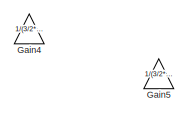
[diagram: root canvas - part 1/2, top left region]
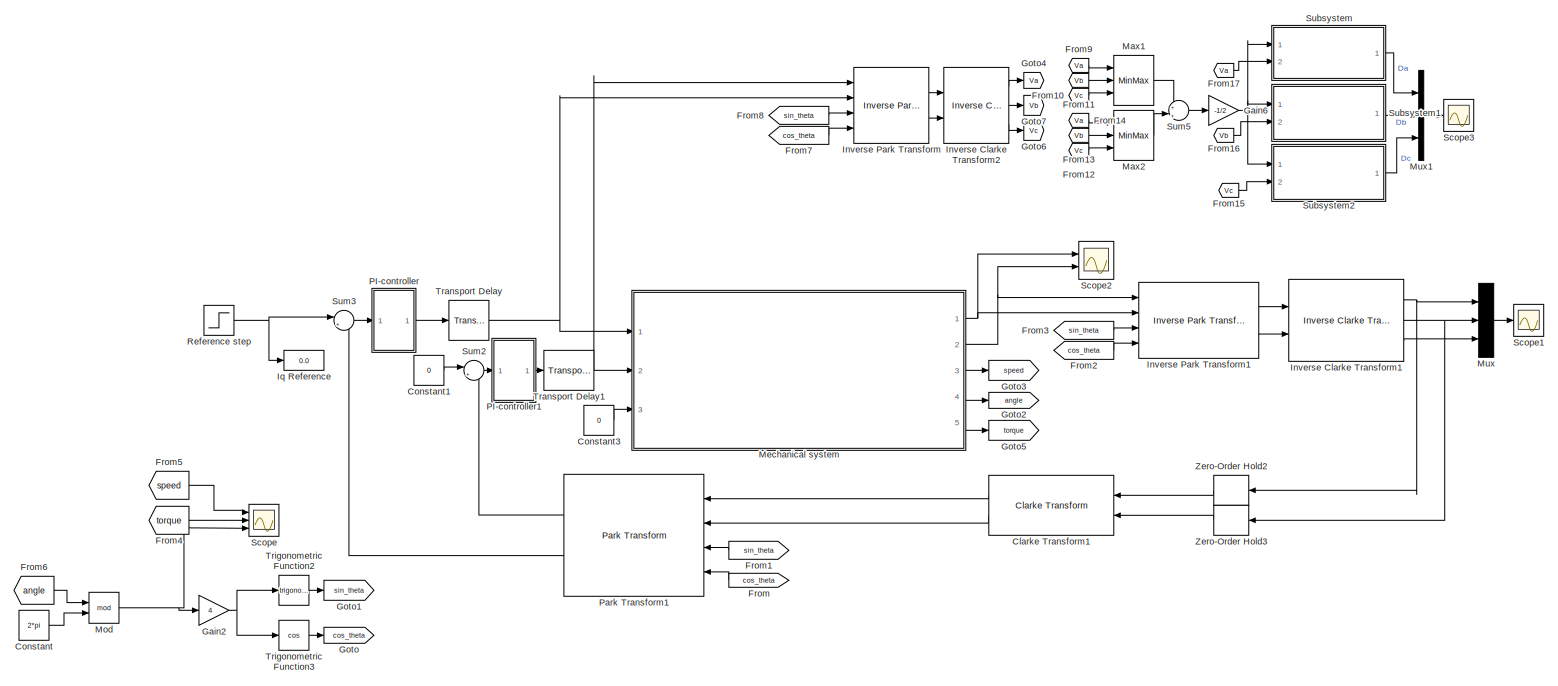
[diagram: root canvas - part 2/2, full width, middle band]
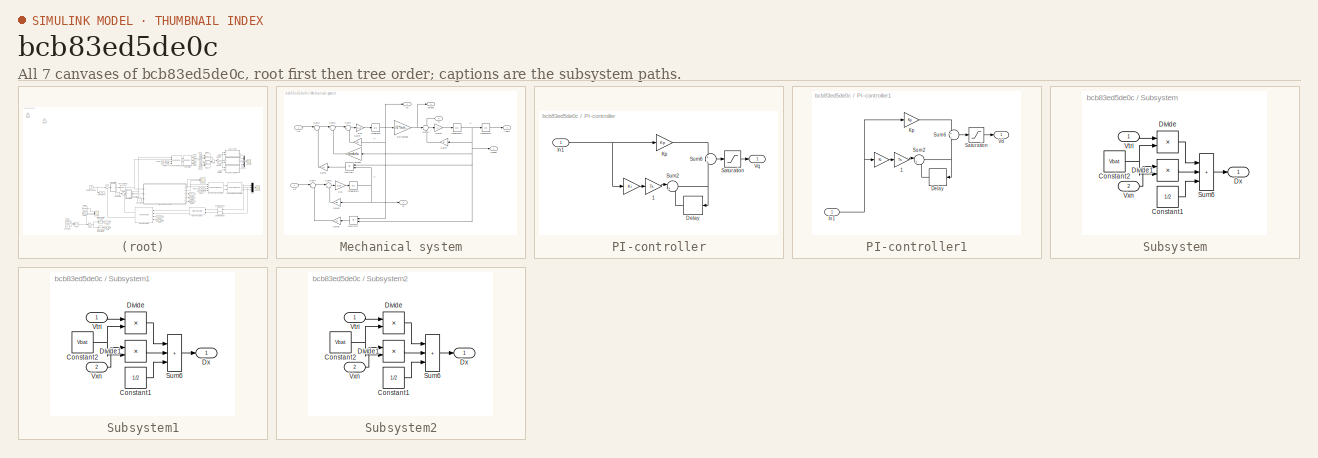
[diagram: thumbnail index - all 7 canvases of the model, root first then tree order]
MODEL slx_bcb83ed5de0c
KIND model
CONFIG AbsTol = auto
CONFIG EnableMultiTasking = off
CONFIG FixedStep = auto
CONFIG MaxStep = auto
CONFIG MinStep = auto
CONFIG RelTol = 1e-3
CONFIG SampleTimeConstraint = Unconstrained
CONFIG SolverName = VariableStepAuto
CONFIG StartTime = 0.0
CONFIG StopTime = 10
BLOCK [Reference] Clarke Transform1  REF=mcbcontrolslib/Clarke Transform
  NameLocation = top
  Ports = [2, 2]
  SourceBlock = mcbcontrolslib/Clarke Transform
  SourceProductBaseCode = MT
  SourceType = Clarke Transform
BLOCK [Constant] Constant
  Value = 2*pi
BLOCK [Constant] Constant1
  Value = 0
BLOCK [Constant] Constant3
  Value = 0
BLOCK [From] From
  GotoTag = cos_theta
  NameLocation = top
BLOCK [From] From1
  GotoTag = sin_theta
  NameLocation = top
BLOCK [From] From10
  GotoTag = Vc
BLOCK [From] From11
  GotoTag = Vb
BLOCK [From] From12
  GotoTag = Vc
BLOCK [From] From13
  GotoTag = Vb
BLOCK [From] From14
  GotoTag = Va
BLOCK [From] From15
  GotoTag = Vc
BLOCK [From] From16
  GotoTag = Vb
BLOCK [From] From17
  GotoTag = Va
BLOCK [From] From2
  GotoTag = cos_theta
BLOCK [From] From3
  GotoTag = sin_theta
BLOCK [From] From4
  GotoTag = torque
BLOCK [From] From5
  GotoTag = speed
BLOCK [From] From6
  GotoTag = angle
BLOCK [From] From7
  GotoTag = cos_theta
BLOCK [From] From8
  GotoTag = sin_theta
BLOCK [From] From9
  GotoTag = Va
BLOCK [Gain] Gain2
  Gain = 4
BLOCK [Gain] Gain4
  Gain = 1/(3/2*lambda)
  NameLocation = right
BLOCK [Gain] Gain5
  Gain = 1/(3/2*lambda)
  NameLocation = right
BLOCK [Gain] Gain6
  Gain = -1/2
BLOCK [Goto] Goto
  GotoTag = cos_theta
BLOCK [Goto] Goto1
  GotoTag = sin_theta
BLOCK [Goto] Goto2
  GotoTag = angle
BLOCK [Goto] Goto3
  GotoTag = speed
BLOCK [Goto] Goto4
  GotoTag = Va
BLOCK [Goto] Goto5
  GotoTag = torque
BLOCK [Goto] Goto6
  GotoTag = Vc
BLOCK [Goto] Goto7
  GotoTag = Vb
BLOCK [Reference] Inverse Clarke Transform1  REF=mcbcontrolslib/Inverse Clarke Transform
  Ports = [2, 3]
  SourceBlock = mcbcontrolslib/Inverse Clarke Transform
  SourceProductBaseCode = MT
  SourceType = Inverse Clarke Transform
BLOCK [Reference] Inverse Clarke Transform2  REF=mcbcontrolslib/Inverse Clarke Transform
  Ports = [2, 3]
  SourceBlock = mcbcontrolslib/Inverse Clarke Transform
  SourceProductBaseCode = MT
  SourceType = Inverse Clarke Transform
BLOCK [Reference] Inverse Park Transform  REF=mcbcontrolslib/Inverse Park Transform
  NameLocation = top
  Ports = [4, 2]
  SourceBlock = mcbcontrolslib/Inverse Park Transform
  SourceProductBaseCode = MT
  SourceType = Inverse Park Transform
BLOCK [Reference] Inverse Park Transform1  REF=mcbcontrolslib/Inverse Park Transform
  Ports = [4, 2]
  SourceBlock = mcbcontrolslib/Inverse Park Transform
  SourceProductBaseCode = MT
  SourceType = Inverse Park Transform
BLOCK [Display] Iq Reference
  Decimation = 3
  Ports = [1]
BLOCK [MinMax] Max1
  Function = max
  Inputs = 3
  Ports = [3, 1]
BLOCK [MinMax] Max2
  Inputs = 3
  Ports = [3, 1]
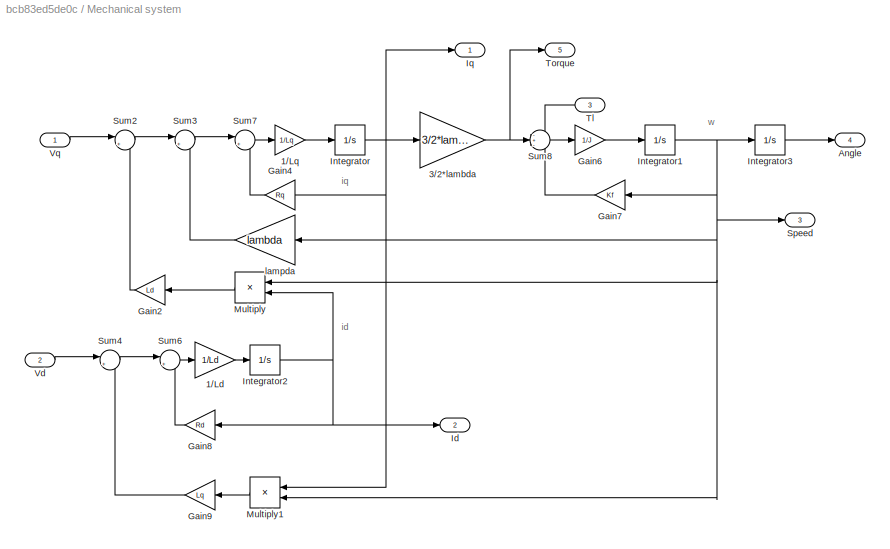
BLOCK [SubSystem] Mechanical system
  Ports = [3, 5]
  RequestExecContextInheritance = off
BLOCK [Gain] Mechanical system/1//Ld
  Gain = 1/Ld
BLOCK [Gain] Mechanical system/1//Lq
  Gain = 1/Lq
BLOCK [Gain] Mechanical system/3//2*lambda
  Gain = 3/2*lambda
BLOCK [Outport] Mechanical system/Angle
  Port = 4
BLOCK [Gain] Mechanical system/Gain2
  Gain = Ld
  NameLocation = top
BLOCK [Gain] Mechanical system/Gain4
  Gain = Rq
  NameLocation = top
BLOCK [Gain] Mechanical system/Gain6
  Gain = 1/J
BLOCK [Gain] Mechanical system/Gain7
  Gain = Kf
  NameLocation = top
BLOCK [Gain] Mechanical system/Gain8
  Gain = Rd
  NameLocation = top
BLOCK [Gain] Mechanical system/Gain9
  Gain = Lq
  NameLocation = top
BLOCK [Outport] Mechanical system/Id
  Port = 2
BLOCK [Integrator] Mechanical system/Integrator
  Ports = [1, 1]
BLOCK [Integrator] Mechanical system/Integrator1
  Ports = [1, 1]
BLOCK [Integrator] Mechanical system/Integrator2
  Ports = [1, 1]
BLOCK [Integrator] Mechanical system/Integrator3
  Ports = [1, 1]
BLOCK [Outport] Mechanical system/Iq
BLOCK [Product] Mechanical system/Multiply
  NameLocation = top
  Ports = [2, 1]
BLOCK [Product] Mechanical system/Multiply1
  NameLocation = top
  Ports = [2, 1]
BLOCK [Outport] Mechanical system/Speed
  Port = 3
BLOCK [Sum] Mechanical system/Sum2
  Inputs = |+-
  Ports = [2, 1]
BLOCK [Sum] Mechanical system/Sum3
  Inputs = |+-
  Ports = [2, 1]
BLOCK [Sum] Mechanical system/Sum4
  Inputs = |++
  Ports = [2, 1]
BLOCK [Sum] Mechanical system/Sum6
  Inputs = |+-
  Ports = [2, 1]
BLOCK [Sum] Mechanical system/Sum7
  Inputs = |+-
  Ports = [2, 1]
BLOCK [Sum] Mechanical system/Sum8
  Inputs = -+-
  Ports = [3, 1]
BLOCK [Inport] Mechanical system/Tl
  NameLocation = top
  Port = 3
BLOCK [Outport] Mechanical system/Torque
  Port = 5
BLOCK [Inport] Mechanical system/Vd
  Port = 2
BLOCK [Inport] Mechanical system/Vq
BLOCK [Gain] Mechanical system/lampda
  Gain = lambda
  NameLocation = left
BLOCK [Math] Mod
  Operator = mod
  Ports = [2, 1]
BLOCK [Mux] Mux
  DisplayOption = bar
  Inputs = 3
  Ports = [3, 1]
BLOCK [Mux] Mux1
  DisplayOption = bar
  Inputs = 3
  Ports = [3, 1]
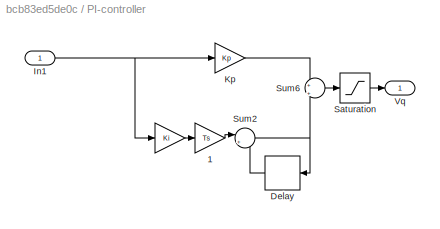
BLOCK [SubSystem] PI-controller
  Ports = [1, 1]
  RequestExecContextInheritance = off
BLOCK [Gain] PI-controller/ 
  Gain = Ki
BLOCK [Gain] PI-controller/ 1
  Gain = Ts
BLOCK [Delay] PI-controller/Delay
  DelayLength = 1
  InputPortMap = u0
  NameLocation = top
  Ports = [1, 1]
  SampleTime = Ts
BLOCK [Inport] PI-controller/In1
BLOCK [Gain] PI-controller/Kp
  Gain = Kp
BLOCK [Saturate] PI-controller/Saturation
  LowerLimit = -Vbat
  UpperLimit = Vbat
BLOCK [Sum] PI-controller/Sum2
  Inputs = |++
  Ports = [2, 1]
BLOCK [Sum] PI-controller/Sum6
  Inputs = +|+
  Ports = [2, 1]
BLOCK [Outport] PI-controller/Vq
BLOCK [SubSystem] PI-controller1
  Ports = [1, 1]
  RequestExecContextInheritance = off
BLOCK [Gain] PI-controller1/ 
  Gain = Ki
BLOCK [Gain] PI-controller1/ 1
  Gain = Ts
BLOCK [Delay] PI-controller1/Delay
  DelayLength = 1
  InputPortMap = u0
  NameLocation = top
  Ports = [1, 1]
  SampleTime = Ts
BLOCK [Inport] PI-controller1/In1
BLOCK [Gain] PI-controller1/Kp
  Gain = Kp
BLOCK [Saturate] PI-controller1/Saturation
  LowerLimit = -Vbat
  UpperLimit = Vbat
BLOCK [Sum] PI-controller1/Sum2
  Inputs = |++
  Ports = [2, 1]
BLOCK [Sum] PI-controller1/Sum6
  Inputs = +|+
  Ports = [2, 1]
BLOCK [Outport] PI-controller1/Vd
BLOCK [Reference] Park Transform1  REF=mcbcontrolslib/Park Transform
  NameLocation = top
  Ports = [4, 2]
  SourceBlock = mcbcontrolslib/Park Transform
  SourceProductBaseCode = MT
  SourceType = Park Transform
BLOCK [Step] Reference step
  After = 311
  SampleTime = 0
  Time = 0.1
BLOCK [Scope] Scope
  Floating = off
  NumInputPorts = 3
  Ports = [3]
  ScopeSpecificationString = Simulink.scopes.TimeScopeBlockCfg('CurrentConfiguration', extmgr.ConfigurationSet(extmgr.Configuration('Core','General UI',true),extmgr.Configuration('Core','Source UI',true),extmgr.Configuration('Sources','WiredSimulink',true,'DataLoggingVariableName','ScopeData1'),extmgr.Configuration('Visuals','Time Domain',true,'SerializedDisplays',{struct('MinYLimReal','-1124.27751','MaxYLimReal','10118.49757...<+2832ch>
BLOCK [Scope] Scope1
  Floating = off
  NumInputPorts = 1
  Ports = [1]
  ScopeSpecificationString = Simulink.scopes.TimeScopeBlockCfg('CurrentConfiguration', extmgr.ConfigurationSet(extmgr.Configuration('Core','General UI',true),extmgr.Configuration('Core','Source UI',true),extmgr.Configuration('Sources','WiredSimulink',true,'DataLoggingVariableName','ScopeData2'),extmgr.Configuration('Visuals','Time Domain',true,'SerializedDisplays',{struct('MinYLimReal','-390.37949','MaxYLimReal','390.38233','...<+1504ch>
BLOCK [Scope] Scope2
  Floating = off
  NumInputPorts = 2
  Ports = [2]
  ScopeSpecificationString = Simulink.scopes.TimeScopeBlockCfg('CurrentConfiguration', extmgr.ConfigurationSet(extmgr.Configuration('Core','General UI',true),extmgr.Configuration('Core','Source UI',true),extmgr.Configuration('Sources','WiredSimulink',true),extmgr.Configuration('Visuals','Time Domain',true,'SerializedDisplays',{struct('MinYLimReal','-39.06201','MaxYLimReal','351.55805','YLabelReal','','MinYLimMag','0.00000','M...<+1445ch>
BLOCK [Scope] Scope3
  Floating = off
  NumInputPorts = 1
  Ports = [1]
  ScopeSpecificationString = Simulink.scopes.TimeScopeBlockCfg('CurrentConfiguration', extmgr.ConfigurationSet(extmgr.Configuration('Core','General UI',true,'FigureColor',[1 1 1]),extmgr.Configuration('Core','Source UI',true),extmgr.Configuration('Sources','WiredSimulink',true,'DataLoggingVariableName','ScopeData2'),extmgr.Configuration('Visuals','Time Domain',true,'SerializedDisplays',{struct('MinYLimReal','0.45654','MaxYLim...<+1852ch>
BLOCK [SubSystem] Subsystem
  Ports = [2, 1]
  RequestExecContextInheritance = off
BLOCK [Constant] Subsystem/Constant1
  Value = 1/2
BLOCK [Constant] Subsystem/Constant2
  Value = Vbat
BLOCK [Product] Subsystem/Divide
  Inputs = */
  Ports = [2, 1]
BLOCK [Product] Subsystem/Divide1
  Inputs = */
  Ports = [2, 1]
BLOCK [Outport] Subsystem/Dx
BLOCK [Sum] Subsystem/Sum6
  IconShape = rectangular
  Inputs = +++
  Ports = [3, 1]
BLOCK [Inport] Subsystem/Vtri
BLOCK [Inport] Subsystem/Vxn
  Port = 2
BLOCK [SubSystem] Subsystem1
  Ports = [2, 1]
  RequestExecContextInheritance = off
BLOCK [Constant] Subsystem1/Constant1
  Value = 1/2
BLOCK [Constant] Subsystem1/Constant2
  Value = Vbat
BLOCK [Product] Subsystem1/Divide
  Inputs = */
  Ports = [2, 1]
BLOCK [Product] Subsystem1/Divide1
  Inputs = */
  Ports = [2, 1]
BLOCK [Outport] Subsystem1/Dx
BLOCK [Sum] Subsystem1/Sum6
  IconShape = rectangular
  Inputs = +++
  Ports = [3, 1]
BLOCK [Inport] Subsystem1/Vtri
BLOCK [Inport] Subsystem1/Vxn
  Port = 2
BLOCK [SubSystem] Subsystem2
  Ports = [2, 1]
  RequestExecContextInheritance = off
BLOCK [Constant] Subsystem2/Constant1
  Value = 1/2
BLOCK [Constant] Subsystem2/Constant2
  Value = Vbat
BLOCK [Product] Subsystem2/Divide
  Inputs = */
  Ports = [2, 1]
BLOCK [Product] Subsystem2/Divide1
  Inputs = */
  Ports = [2, 1]
BLOCK [Outport] Subsystem2/Dx
BLOCK [Sum] Subsystem2/Sum6
  IconShape = rectangular
  Inputs = +++
  Ports = [3, 1]
BLOCK [Inport] Subsystem2/Vtri
BLOCK [Inport] Subsystem2/Vxn
  Port = 2
BLOCK [Sum] Sum2
  Inputs = |+-
  Ports = [2, 1]
BLOCK [Sum] Sum3
  Inputs = |+-
  Ports = [2, 1]
BLOCK [Sum] Sum5
  Inputs = +|+
  Ports = [2, 1]
BLOCK [TransportDelay] Transport Delay
  DelayTime = Calc_delay
  Ports = [1, 1]
BLOCK [TransportDelay] Transport Delay1
  DelayTime = Calc_delay
  Ports = [1, 1]
BLOCK [Trigonometry] Trigonometric Function2
  Ports = [1, 1]
BLOCK [Trigonometry] Trigonometric Function3
  Operator = cos
  Ports = [1, 1]
BLOCK [ZeroOrderHold] Zero-Order Hold2
  NameLocation = top
  SampleTime = Ts
BLOCK [ZeroOrderHold] Zero-Order Hold3
  NameLocation = top
  SampleTime = Ts
ANNOTATION Mechanical system: id
ANNOTATION Mechanical system: iq
ANNOTATION Mechanical system: w
LINE Clarke Transform1:1 -> Park Transform1:1
LINE Clarke Transform1:2 -> Park Transform1:2
LINE Constant1:1 -> Sum2:1
LINE Constant3:1 -> Mechanical system:3
LINE Constant:1 -> Mod:2
LINE From10:1 -> Max1:3
LINE From11:1 -> Max1:2
LINE From12:1 -> Max2:3
LINE From13:1 -> Max2:2
LINE From14:1 -> Max2:1
LINE From15:1 -> Subsystem2:2
LINE From16:1 -> Subsystem1:2
LINE From17:1 -> Subsystem:2
LINE From1:1 -> Park Transform1:3
LINE From2:1 -> Inverse Park Transform1:4
LINE From3:1 -> Inverse Park Transform1:3
LINE From4:1 -> Scope:2
LINE From5:1 -> Scope:1
LINE From6:1 -> Mod:1
LINE From7:1 -> Inverse Park Transform:4
LINE From8:1 -> Inverse Park Transform:3
LINE From9:1 -> Max1:1
LINE From:1 -> Park Transform1:4
NET Gain2:1 -> Trigonometric Function2:1, Trigonometric Function3:1
NET Gain6:1 -> Subsystem1:1, Subsystem2:1, Subsystem:1
NET Inverse Clarke Transform1:1 -> Mux:1, Zero-Order Hold2:1
NET Inverse Clarke Transform1:2 -> Mux:2, Zero-Order Hold3:1
LINE Inverse Clarke Transform1:3 -> Mux:3
LINE Inverse Clarke Transform2:1 -> Goto4:1
LINE Inverse Clarke Transform2:2 -> Goto7:1
LINE Inverse Clarke Transform2:3 -> Goto6:1
LINE Inverse Park Transform1:1 -> Inverse Clarke Transform1:1
LINE Inverse Park Transform1:2 -> Inverse Clarke Transform1:2
LINE Inverse Park Transform:1 -> Inverse Clarke Transform2:1
LINE Inverse Park Transform:2 -> Inverse Clarke Transform2:2
LINE Max1:1 -> Sum5:1
LINE Max2:1 -> Sum5:2
LINE Mechanical system/1//Ld:1 -> Mechanical system/Integrator2:1
LINE Mechanical system/1//Lq:1 -> Mechanical system/Integrator:1
NET Mechanical system/3//2*lambda:1 -> Mechanical system/Sum8:2, Mechanical system/Torque:1
LINE Mechanical system/Gain2:1 -> Mechanical system/Sum2:2
LINE Mechanical system/Gain4:1 -> Mechanical system/Sum7:2
LINE Mechanical system/Gain6:1 -> Mechanical system/Integrator1:1
LINE Mechanical system/Gain7:1 -> Mechanical system/Sum8:3
LINE Mechanical system/Gain8:1 -> Mechanical system/Sum6:2
LINE Mechanical system/Gain9:1 -> Mechanical system/Sum4:2
NET Mechanical system/Integrator1:1 -> Mechanical system/Gain7:1, Mechanical system/Integrator3:1, Mechanical system/Multiply1:2, Mechanical system/Multiply:1, Mechanical system/Speed:1, Mechanical system/lampda:1
NET Mechanical system/Integrator2:1 -> Mechanical system/Gain8:1, Mechanical system/Id:1, Mechanical system/Multiply:2
LINE Mechanical system/Integrator3:1 -> Mechanical system/Angle:1
NET Mechanical system/Integrator:1 -> Mechanical system/3//2*lambda:1, Mechanical system/Gain4:1, Mechanical system/Iq:1, Mechanical system/Multiply1:1
LINE Mechanical system/Multiply1:1 -> Mechanical system/Gain9:1
LINE Mechanical system/Multiply:1 -> Mechanical system/Gain2:1
LINE Mechanical system/Sum2:1 -> Mechanical system/Sum3:1
LINE Mechanical system/Sum3:1 -> Mechanical system/Sum7:1
LINE Mechanical system/Sum4:1 -> Mechanical system/Sum6:1
LINE Mechanical system/Sum6:1 -> Mechanical system/1//Ld:1
LINE Mechanical system/Sum7:1 -> Mechanical system/1//Lq:1
LINE Mechanical system/Sum8:1 -> Mechanical system/Gain6:1
LINE Mechanical system/Tl:1 -> Mechanical system/Sum8:1
LINE Mechanical system/Vd:1 -> Mechanical system/Sum4:1
LINE Mechanical system/Vq:1 -> Mechanical system/Sum2:1
LINE Mechanical system/lampda:1 -> Mechanical system/Sum3:2
NET Mechanical system:1 -> Inverse Park Transform1:2, Scope2:1
NET Mechanical system:2 -> Inverse Park Transform1:1, Scope2:2
LINE Mechanical system:3 -> Goto3:1
LINE Mechanical system:4 -> Goto2:1
LINE Mechanical system:5 -> Goto5:1
NET Mod:1 -> Gain2:1, Scope:3
LINE Mux1:1 -> Scope3:1
LINE Mux:1 -> Scope1:1
LINE PI-controller/ 1:1 -> PI-controller/Sum2:1
LINE PI-controller/ :1 -> PI-controller/ 1:1
LINE PI-controller/Delay:1 -> PI-controller/Sum2:2
NET PI-controller/In1:1 -> PI-controller/ :1, PI-controller/Kp:1
LINE PI-controller/Kp:1 -> PI-controller/Sum6:1
LINE PI-controller/Saturation:1 -> PI-controller/Vq:1
NET PI-controller/Sum2:1 -> PI-controller/Delay:1, PI-controller/Sum6:2
LINE PI-controller/Sum6:1 -> PI-controller/Saturation:1
LINE PI-controller1/ 1:1 -> PI-controller1/Sum2:1
LINE PI-controller1/ :1 -> PI-controller1/ 1:1
LINE PI-controller1/Delay:1 -> PI-controller1/Sum2:2
NET PI-controller1/In1:1 -> PI-controller1/ :1, PI-controller1/Kp:1
LINE PI-controller1/Kp:1 -> PI-controller1/Sum6:1
LINE PI-controller1/Saturation:1 -> PI-controller1/Vd:1
NET PI-controller1/Sum2:1 -> PI-controller1/Delay:1, PI-controller1/Sum6:2
LINE PI-controller1/Sum6:1 -> PI-controller1/Saturation:1
LINE PI-controller1:1 -> Transport Delay1:1
LINE PI-controller:1 -> Transport Delay:1
LINE Park Transform1:1 -> Sum2:2
LINE Park Transform1:2 -> Sum3:2
NET Reference step:1 -> Iq Reference:1, Sum3:1
LINE Subsystem/Constant1:1 -> Subsystem/Sum6:3
NET Subsystem/Constant2:1 -> Subsystem/Divide1:2, Subsystem/Divide:2
LINE Subsystem/Divide1:1 -> Subsystem/Sum6:2
LINE Subsystem/Divide:1 -> Subsystem/Sum6:1
LINE Subsystem/Sum6:1 -> Subsystem/Dx:1
LINE Subsystem/Vtri:1 -> Subsystem/Divide:1
LINE Subsystem/Vxn:1 -> Subsystem/Divide1:1
LINE Subsystem1/Constant1:1 -> Subsystem1/Sum6:3
NET Subsystem1/Constant2:1 -> Subsystem1/Divide1:2, Subsystem1/Divide:2
LINE Subsystem1/Divide1:1 -> Subsystem1/Sum6:2
LINE Subsystem1/Divide:1 -> Subsystem1/Sum6:1
LINE Subsystem1/Sum6:1 -> Subsystem1/Dx:1
LINE Subsystem1/Vtri:1 -> Subsystem1/Divide:1
LINE Subsystem1/Vxn:1 -> Subsystem1/Divide1:1
LINE Subsystem1:1 -> Mux1:2
LINE Subsystem2/Constant1:1 -> Subsystem2/Sum6:3
NET Subsystem2/Constant2:1 -> Subsystem2/Divide1:2, Subsystem2/Divide:2
LINE Subsystem2/Divide1:1 -> Subsystem2/Sum6:2
LINE Subsystem2/Divide:1 -> Subsystem2/Sum6:1
LINE Subsystem2/Sum6:1 -> Subsystem2/Dx:1
LINE Subsystem2/Vtri:1 -> Subsystem2/Divide:1
LINE Subsystem2/Vxn:1 -> Subsystem2/Divide1:1
LINE Subsystem2:1 -> Mux1:3
LINE Subsystem:1 -> Mux1:1
LINE Sum2:1 -> PI-controller1:1
LINE Sum3:1 -> PI-controller:1
LINE Sum5:1 -> Gain6:1
NET Transport Delay1:1 -> Inverse Park Transform:1, Mechanical system:2
NET Transport Delay:1 -> Inverse Park Transform:2, Mechanical system:1
LINE Trigonometric Function2:1 -> Goto1:1
LINE Trigonometric Function3:1 -> Goto:1
LINE Zero-Order Hold2:1 -> Clarke Transform1:1
LINE Zero-Order Hold3:1 -> Clarke Transform1:2
note: NET lines group one-source signal fan-out (src -> all destinations, sorted); 1:1 wires keep LINE
